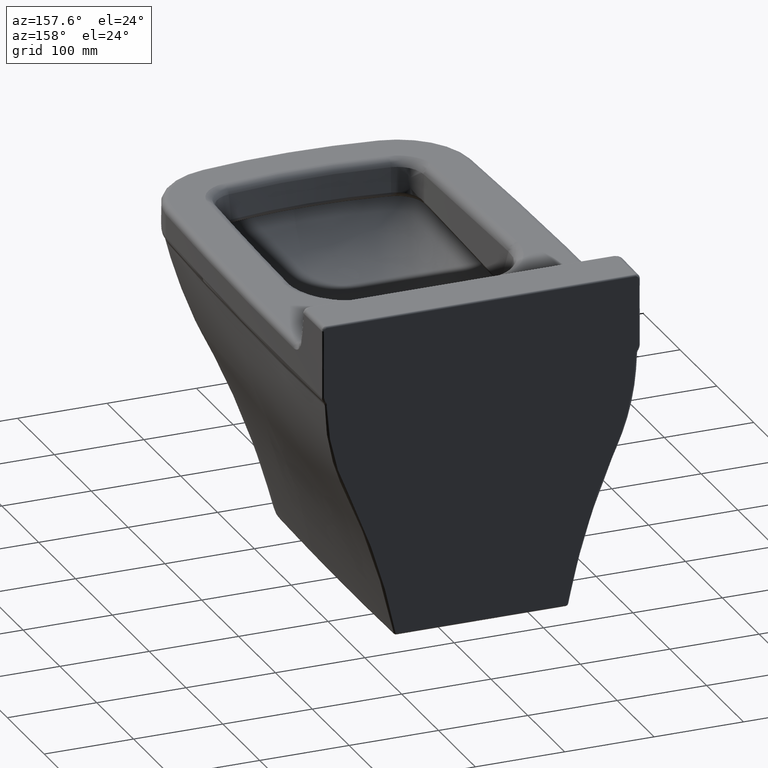
[diagram: clean part render]
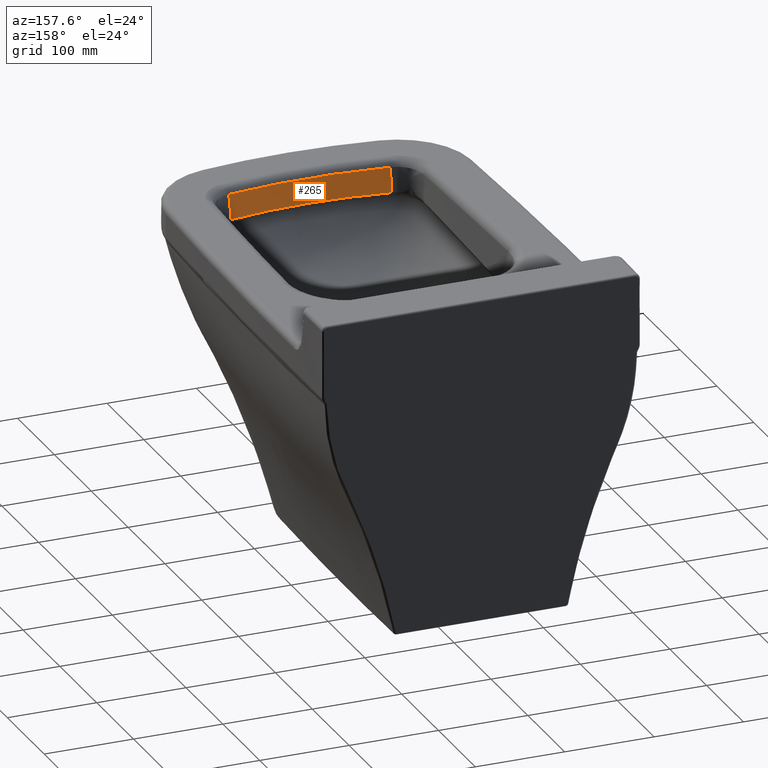
[diagram: same view with one face highlighted and labeled with its STEP entity id]
A machine part, auxiliary view. The second image highlights one B-rep face of the part: STEP entity #265.
In plain terms, the highlighted conical surface has half-angle 8.135 deg.
Its self-contained STEP definition (entity closure, byte-faithful):
#198=CONICAL_SURFACE('',#2075,605.563376317978,8.13527085858321);
#199=CIRCLE('',#2074,611.411705556829);
#265=ADVANCED_FACE('',(#427),#198,.F.);
#427=FACE_OUTER_BOUND('',#559,.T.);
#559=EDGE_LOOP('',(#898,#899,#900,#901,#902,#903,#904));
#707=B_SPLINE_CURVE_WITH_KNOTS('',3,(#3321,#3322,#3323,#3324,#3325,#3326,
#3327,#3328,#3329,#3330,#3331,#3332,#3333,#3334,#3335,#3336,#3337,#3338,
#3339,#3340,#3341,#3342,#3343,#3344,#3345,#3346,#3347,#3348,#3349,#3350,
#3351,#3352,#3353),.UNSPECIFIED.,.F.,.F.,(4,2,2,1,2,2,2,1,2,2,2,2,1,1,1,
1,1,2,2,4),(0.,0.124999999999987,0.132812499999986,0.140624999999985,0.156249999999983,
0.18749999999998,0.191406249999979,0.195312499999979,0.203124999999978,
0.218749999999976,0.249999999999973,0.253906249999973,0.257812499999973,
0.265624999999973,0.281249999999973,0.312499999999974,0.374999999999977,
0.499999999999981,0.749999999999991,1.),.UNSPECIFIED.);
#708=B_SPLINE_CURVE_WITH_KNOTS('',3,(#3365,#3366,#3367,#3368,#3369,#3370,
#3371,#3372),.UNSPECIFIED.,.F.,.F.,(4,2,2,4),(0.,0.25,0.5,1.),
 .UNSPECIFIED.);
#709=B_SPLINE_CURVE_WITH_KNOTS('',3,(#3374,#3375,#3376,#3377),
 .UNSPECIFIED.,.F.,.F.,(4,4),(0.,1.),.UNSPECIFIED.);
#710=B_SPLINE_CURVE_WITH_KNOTS('',3,(#3381,#3382,#3383,#3384),
 .UNSPECIFIED.,.F.,.F.,(4,4),(0.,1.),.UNSPECIFIED.);
#711=B_SPLINE_CURVE_WITH_KNOTS('',3,(#3386,#3387,#3388,#3389,#3390,#3391,
#3392,#3393),.UNSPECIFIED.,.F.,.F.,(4,2,2,4),(0.,0.25,0.5,1.),
 .UNSPECIFIED.);
#898=ORIENTED_EDGE('',*,*,#1718,.T.);
#899=ORIENTED_EDGE('',*,*,#1719,.F.);
#900=ORIENTED_EDGE('',*,*,#1720,.F.);
#901=ORIENTED_EDGE('',*,*,#1721,.F.);
#902=ORIENTED_EDGE('',*,*,#1722,.F.);
#903=ORIENTED_EDGE('',*,*,#1723,.T.);
#904=ORIENTED_EDGE('',*,*,#1724,.T.);
#1530=VERTEX_POINT('',#3354);
#1531=VERTEX_POINT('',#3355);
#1532=VERTEX_POINT('',#3364);
#1533=VERTEX_POINT('',#3373);
#1534=VERTEX_POINT('',#3378);
#1535=VERTEX_POINT('',#3380);
#1536=VERTEX_POINT('',#3385);
#1718=EDGE_CURVE('',#1530,#1531,#707,.T.);
#1719=EDGE_CURVE('',#1532,#1531,#2027,.T.);
#1720=EDGE_CURVE('',#1533,#1532,#708,.T.);
#1721=EDGE_CURVE('',#1534,#1533,#709,.T.);
#1722=EDGE_CURVE('',#1535,#1534,#199,.T.);
#1723=EDGE_CURVE('',#1535,#1536,#710,.T.);
#1724=EDGE_CURVE('',#1536,#1530,#711,.T.);
#2027=(
BOUNDED_CURVE()
B_SPLINE_CURVE(3,(#3356,#3357,#3358,#3359,#3360,#3361,#3362,#3363),
 .UNSPECIFIED.,.F.,.F.)
B_SPLINE_CURVE_WITH_KNOTS((4,2,2,4),(0.,0.25,0.5,1.),.UNSPECIFIED.)
CURVE()
GEOMETRIC_REPRESENTATION_ITEM()
RATIONAL_B_SPLINE_CURVE((0.999999999846669,0.999999999845225,0.999999999845578,
0.999999999845482,0.999999999845446,0.999999999845365,0.999999999845355,
0.999999999845355))
REPRESENTATION_ITEM('')
);
#2074=AXIS2_PLACEMENT_3D('',#3379,#2168,#2169);
#2075=AXIS2_PLACEMENT_3D('',#3394,#2170,#2171);
#2168=DIRECTION('',(0.,0.,-1.));
#2169=DIRECTION('',(-1.,0.,0.));
#2170=DIRECTION('',(0.,0.,1.));
#2171=DIRECTION('',(1.,0.,-2.78107310161978E-17));
#3321=CARTESIAN_POINT('',(89.4423324295143,-488.285790181105,-35.6372928212347));
#3322=CARTESIAN_POINT('',(86.1344249576871,-488.7860005034,-35.5829245301647));
#3323=CARTESIAN_POINT('',(82.4145851490276,-489.319022884458,-35.5353715481722));
#3324=CARTESIAN_POINT('',(78.0219066752025,-489.895983668365,-35.4920877707));
#3325=CARTESIAN_POINT('',(77.8631825717644,-489.916719156813,-35.490550426503));
#3326=CARTESIAN_POINT('',(77.4364452853472,-489.972299854267,-35.486452193929));
#3327=CARTESIAN_POINT('',(76.7867178190132,-490.056567050496,-35.4802900612481));
#3328=CARTESIAN_POINT('',(76.1081148521939,-490.143430688624,-35.4740835771077));
#3329=CARTESIAN_POINT('',(74.7123785231199,-490.320360699817,-35.4616114735474));
#3330=CARTESIAN_POINT('',(73.7305139093157,-490.442589282945,-35.4532178908013));
#3331=CARTESIAN_POINT('',(72.5680290830034,-490.584061741425,-35.4436864072928));
#3332=CARTESIAN_POINT('',(72.5381561363415,-490.587681371257,-35.443444165052));
#3333=CARTESIAN_POINT('',(72.3719971101157,-490.607833418861,-35.4420925661661));
#3334=CARTESIAN_POINT('',(72.1156371198602,-490.638871805309,-35.4400148649155));
#3335=CARTESIAN_POINT('',(71.8379095844666,-490.672314503342,-35.4377862548991));
#3336=CARTESIAN_POINT('',(71.2539551514385,-490.742327056148,-35.4331278231789));
#3337=CARTESIAN_POINT('',(70.8266533012545,-490.793174327918,-35.429753919782));
#3338=CARTESIAN_POINT('',(69.4306669947906,-490.957506724909,-35.4188273628411));
#3339=CARTESIAN_POINT('',(68.3479050246451,-491.082825630207,-35.4104698625469));
#3340=CARTESIAN_POINT('',(66.9583779617476,-491.238782995814,-35.3998604045906));
#3341=CARTESIAN_POINT('',(66.8809495154435,-491.247439257758,-35.3992715794821));
#3342=CARTESIAN_POINT('',(66.6491044141846,-491.273324485449,-35.3975108296324));
#3343=CARTESIAN_POINT('',(66.3013120221472,-491.312052686619,-35.3948766087784));
#3344=CARTESIAN_POINT('',(65.4896236572915,-491.401720798279,-35.3887784208965));
#3345=CARTESIAN_POINT('',(63.8655589774867,-491.578264592038,-35.3767753549086));
#3346=CARTESIAN_POINT('',(60.6147033294282,-491.920169181863,-35.3535424620372));
#3347=CARTESIAN_POINT('',(54.1022916555306,-492.559140827322,-35.3101696327114));
#3348=CARTESIAN_POINT('',(48.5025855261761,-493.029606945396,-35.2782951328615));
#3349=CARTESIAN_POINT('',(37.28156180737,-493.866644989342,-35.2216157478293));
#3350=CARTESIAN_POINT('',(29.8913427617914,-494.279318748501,-35.1937695063603));
#3351=CARTESIAN_POINT('',(14.9671448779905,-494.835968812178,-35.1562652216991));
#3352=CARTESIAN_POINT('',(7.48898951361221,-494.975780579469,-35.1468891505338));
#3353=CARTESIAN_POINT('',(-8.69985280469698E-11,-494.975780579468,-35.1468891505338));
#3354=CARTESIAN_POINT('',(89.4423324295842,-488.285790181365,-35.6372928193676));
#3355=CARTESIAN_POINT('',(-2.19102782702532E-11,-494.975780579669,-35.1468891491278));
#3356=CARTESIAN_POINT('',(-89.4423324295144,-488.285790181105,-35.6372928212347));
#3357=CARTESIAN_POINT('',(-82.0029111523166,-489.410753725717,-35.5150195639458));
#3358=CARTESIAN_POINT('',(-74.5595240557443,-490.385647557288,-35.4578977450188));
#3359=CARTESIAN_POINT('',(-59.6660156595055,-492.057261241985,-35.3441807214862));
#3360=CARTESIAN_POINT('',(-52.2158307098307,-492.752615466268,-35.2970516876646));
#3361=CARTESIAN_POINT('',(-29.8550714400596,-494.4206279476,-35.1841026382233));
#3362=CARTESIAN_POINT('',(-14.9342977129542,-494.975780579387,-35.1468891511189));
#3363=CARTESIAN_POINT('',(8.69729428471678E-11,-494.975780579468,-35.1468891505338));
#3364=CARTESIAN_POINT('',(-89.4423324295842,-488.285790181365,-35.6372928193676));
#3365=CARTESIAN_POINT('',(-91.5469608968468,-495.122652818549,13.8415753313463));
#3366=CARTESIAN_POINT('',(-91.3517142679928,-494.48805158192,9.24884389805091));
#3367=CARTESIAN_POINT('',(-91.1564676391388,-493.853450345291,4.6561124647555));
#3368=CARTESIAN_POINT('',(-90.7659743814307,-492.584247872033,-4.52935040183534));
#3369=CARTESIAN_POINT('',(-90.5707598536202,-491.94964949328,-9.12208336231119));
#3370=CARTESIAN_POINT('',(-89.9847854274381,-490.045824974408,-22.9002665267006));
#3371=CARTESIAN_POINT('',(-89.5937377753322,-488.776573060351,-32.0857029918243));
#3372=CARTESIAN_POINT('',(-89.2022905334342,-487.507282860494,-41.2711195923296));
#3373=CARTESIAN_POINT('',(-89.4876337823813,-488.432747548589,-34.5737976382101));
#3374=CARTESIAN_POINT('',(-90.5935646285708,-492.023872697243,-8.58489343548946));
#3375=CARTESIAN_POINT('',(-90.2252752319848,-490.826862928318,-17.2478784812537));
#3376=CARTESIAN_POINT('',(-89.8566320515831,-489.62982197247,-25.9108467936067));
#3377=CARTESIAN_POINT('',(-89.48763378279,-488.432747549915,-34.5737976286167));
#3378=CARTESIAN_POINT('',(-90.5935646285537,-492.023872697243,-8.58489343548891));
#3379=CARTESIAN_POINT('',(0.,112.638909140539,-8.58489343548793));
#3380=CARTESIAN_POINT('',(90.5935646285537,-492.023872697243,-8.58489343548891));
#3381=CARTESIAN_POINT('',(90.5935646285708,-492.023872697243,-8.58489343548946));
#3382=CARTESIAN_POINT('',(90.2252752319848,-490.826862928318,-17.2478784812537));
#3383=CARTESIAN_POINT('',(89.8566320515831,-489.62982197247,-25.9108467936067));
#3384=CARTESIAN_POINT('',(89.48763378279,-488.432747549915,-34.5737976286167));
#3385=CARTESIAN_POINT('',(89.4876337823813,-488.432747548589,-34.5737976382101));
#3386=CARTESIAN_POINT('',(91.5469608968468,-495.122652818549,13.8415753313463));
#3387=CARTESIAN_POINT('',(91.3517142679928,-494.48805158192,9.24884389805091));
#3388=CARTESIAN_POINT('',(91.1564676391388,-493.853450345291,4.6561124647555));
#3389=CARTESIAN_POINT('',(90.7659743814307,-492.584247872033,-4.52935040183534));
#3390=CARTESIAN_POINT('',(90.5707598536202,-491.94964949328,-9.12208336231119));
#3391=CARTESIAN_POINT('',(89.9847854274381,-490.045824974408,-22.9002665267006));
#3392=CARTESIAN_POINT('',(89.5937377753322,-488.776573060351,-32.0857029918243));
#3393=CARTESIAN_POINT('',(89.2022905334342,-487.507282860494,-41.2711195923296));
#3394=CARTESIAN_POINT('',(0.,112.638909140539,-49.4968366188878));